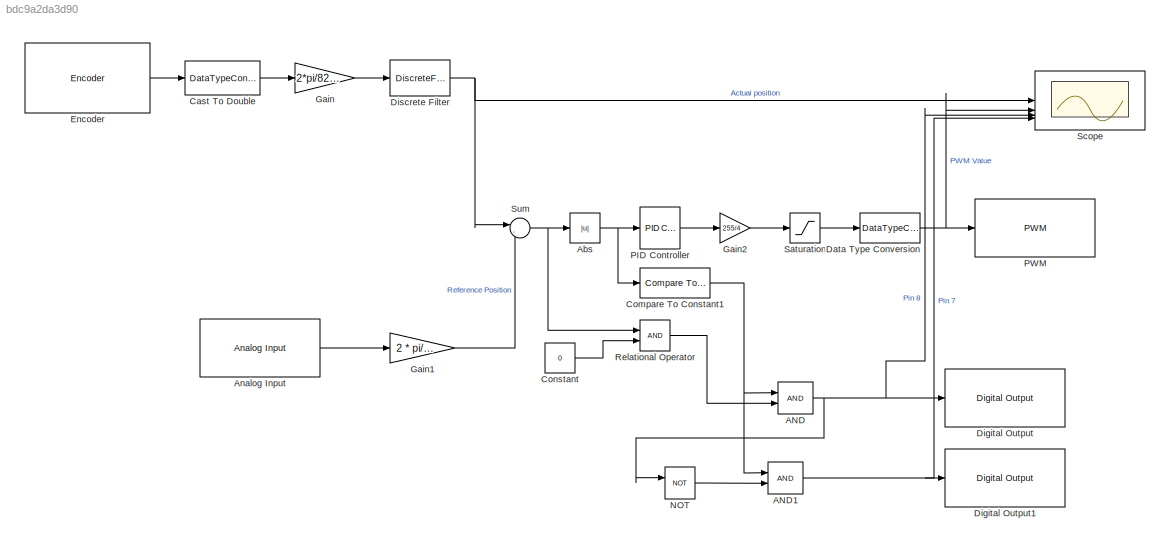
MODEL slx_bdc9a2da3d90
KIND model
CONFIG AbsTol = auto
CONFIG EnableMultiTasking = on
CONFIG FixedStep = auto
CONFIG MaxStep = auto
CONFIG MinStep = auto
CONFIG RelTol = 1e-3
CONFIG SampleTimeConstraint = Unconstrained
CONFIG SolverName = ode45
CONFIG StartTime = 0.0
CONFIG StopTime = 10.0
BLOCK [Logic] AND
  AllPortsSameDT = off
  IconShape = distinctive
  OutDataTypeStr = boolean
BLOCK [Logic] AND1
  AllPortsSameDT = off
  IconShape = distinctive
  OutDataTypeStr = boolean
BLOCK [Abs] Abs
  SaturateOnIntegerOverflow = off
BLOCK [Reference] Analog Input  REF=arduinolib/Analog Input
  SourceBlock = arduinolib/Analog Input
  SourceType = Arduino Analog Input
BLOCK [DataTypeConversion] Cast To Double
  OutDataTypeStr = double
  RndMeth = Floor
  SaturateOnIntegerOverflow = off
BLOCK [Reference] Compare To Constant1  REF=simulink/Logic and Bit
Operations/Compare
To Constant
  SourceBlock = simulink/Logic and Bit\nOperations/Compare\nTo Constant
  SourceType = Compare To Constant
BLOCK [Constant] Constant
  Value = 0
BLOCK [DataTypeConversion] Data Type Conversion
  OutDataTypeStr = uint8
  RndMeth = Floor
  SaturateOnIntegerOverflow = off
BLOCK [Reference] Digital Output  REF=arduinolib/Digital Output
  SourceBlock = arduinolib/Digital Output
  SourceType = Arduino Digital Output
BLOCK [Reference] Digital Output1  REF=arduinolib/Digital Output
  SourceBlock = arduinolib/Digital Output
  SourceType = Arduino Digital Output
BLOCK [DiscreteFilter] Discrete Filter
  InputPortMap = u0
BLOCK [Reference] Encoder  REF=arduinosensorlib/Encoder
  SourceBlock = arduinosensorlib/Encoder
  SourceType = Arduino Rotary Encoder
BLOCK [Gain] Gain
  Gain = 2*pi/8256
BLOCK [Gain] Gain1
  Gain = 2 * pi/1023
BLOCK [Gain] Gain2
  Gain = 255/4
BLOCK [Logic] NOT
  AllPortsSameDT = off
  IconShape = distinctive
  Operator = NOT
  OutDataTypeStr = boolean
BLOCK [Reference] PID Controller  REF=slpidlib/PID Controller
  LibrarySourceBlock = simulink/Continuous/PID Controller
  SourceBlock = slpidlib/PID Controller
  SourceType = PID 1dof
BLOCK [Reference] PWM  REF=arduinolib/PWM
  SourceBlock = arduinolib/PWM
  SourceType = Arduino PWM
BLOCK [RelationalOperator] Relational Operator
  InputSameDT = off
  OutDataTypeStr = boolean
  RndMeth = Simplest
BLOCK [Saturate] Saturation
  LowerLimit = 0
  UpperLimit = 255
BLOCK [Scope] Scope
  Floating = off
  NumInputPorts = 4
  ScopeSpecificationString = Simulink.scopes.TimeScopeBlockCfg('CurrentConfiguration', extmgr.ConfigurationSet(extmgr.Configuration('Core','General UI',true),extmgr.Configuration('Core','Source UI',true),extmgr.Configuration('Sources','WiredSimulink',true),extmgr.Configuration('Visuals','Time Domain',true,'SerializedDisplays',{struct('MinYLimReal','-0.82792','MaxYLimReal','7.45125','YLabelReal','','MinYLimMag','0.00000','MaxY...<+3372ch>
BLOCK [Sum] Sum
  Inputs = |-+
NET AND1:1 -> Digital Output1:1, Scope:4
NET AND:1 -> Digital Output:1, NOT:1, Scope:3
NET Abs:1 -> Compare To Constant1:1, PID Controller:1
LINE Analog Input:1 -> Gain1:1
LINE Cast To Double:1 -> Gain:1
NET Compare To Constant1:1 -> AND1:1, AND:1
LINE Constant:1 -> Relational Operator:2
NET Data Type Conversion:1 -> PWM:1, Scope:2
NET Discrete Filter:1 -> Scope:1, Sum:1
LINE Encoder:1 -> Cast To Double:1
LINE Gain1:1 -> Sum:2
LINE Gain2:1 -> Saturation:1
LINE Gain:1 -> Discrete Filter:1
LINE NOT:1 -> AND1:2
LINE PID Controller:1 -> Gain2:1
LINE Relational Operator:1 -> AND:2
LINE Saturation:1 -> Data Type Conversion:1
NET Sum:1 -> Abs:1, Relational Operator:1
note: NET lines group one-source signal fan-out (src -> all destinations, sorted); 1:1 wires keep LINE
